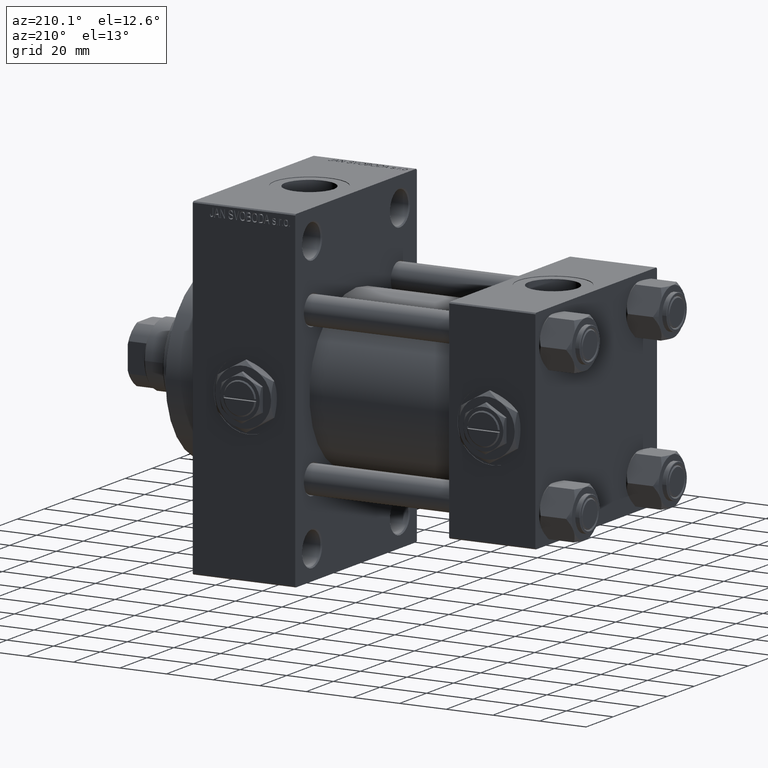
[diagram: clean part render]
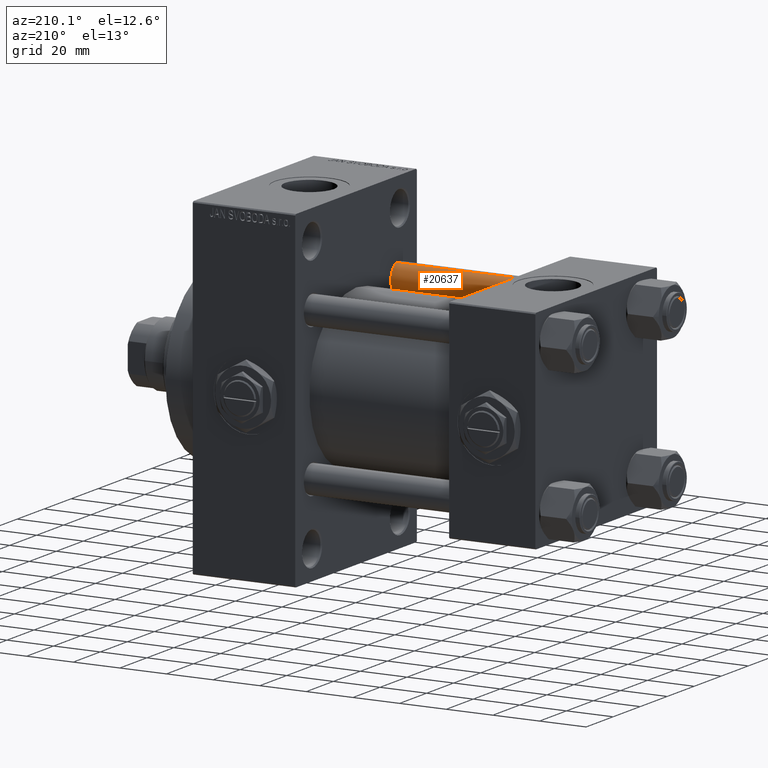
[diagram: same view with one face highlighted and labeled with its STEP entity id]
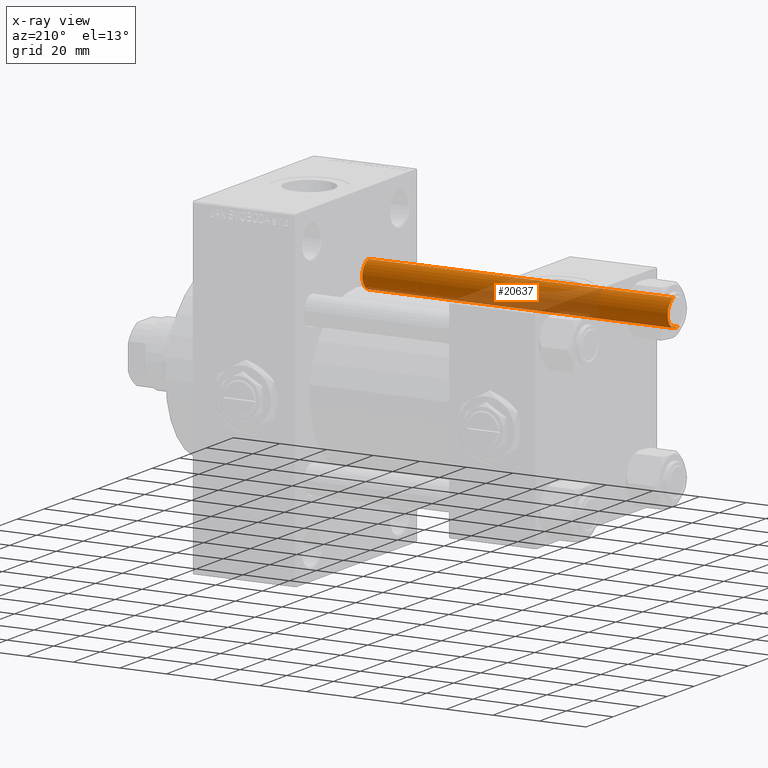
[diagram: x-ray of the same camera — body ghosted, the highlighted face saturated]
A machine part, auxiliary view. The second image highlights one B-rep face of the part: STEP entity #20637.
The next image is the same camera in x-ray: the body ghosted, the highlighted face saturated — about 36% of this face is hidden behind the body in this view.
In plain terms, the highlighted cylindrical surface (edge-blend (fillet) strip) has radius 6 mm, axis along (1, 0, 0).
Its self-contained STEP definition (entity closure, byte-faithful):
#300 = VERTEX_POINT ( 'NONE', #11860 ) ;
#2718 = VERTEX_POINT ( 'NONE', #45477 ) ;
#3138 = ORIENTED_EDGE ( 'NONE', *, *, #7655, .T. ) ;
#4096 = ORIENTED_EDGE ( 'NONE', *, *, #34142, .T. ) ;
#7655 = EDGE_CURVE ( 'NONE', #2718, #36695, #45165, .T. ) ;
#8172 = CARTESIAN_POINT ( 'NONE',  ( -6.000000000000000888, 0.000000000000000000, 132.0000000000000000 ) ) ;
#11426 = CARTESIAN_POINT ( 'NONE',  ( 6.000000000000000888, 7.347880794884120722E-16, 0.5000000000000281997 ) ) ;
#11860 = CARTESIAN_POINT ( 'NONE',  ( -6.000000000000000888, 0.000000000000000000, 0.5000000000000281997 ) ) ;
#13732 = LINE ( 'NONE', #25434, #32668 ) ;
#13801 = CARTESIAN_POINT ( 'NONE',  ( 0.000000000000000000, 0.000000000000000000, 131.4999999999999716 ) ) ;
#14312 = EDGE_CURVE ( 'NONE', #2718, #15700, #13732, .T. ) ;
#15084 = CARTESIAN_POINT ( 'NONE',  ( -6.000000000000000888, 0.000000000000000000, 131.4999999999999716 ) ) ;
#15294 = VECTOR ( 'NONE', #46059, 1000.000000000000000 ) ;
#15632 = LINE ( 'NONE', #8172, #15294 ) ;
#15700 = VERTEX_POINT ( 'NONE', #11426 ) ;
#16122 = DIRECTION ( 'NONE',  ( 0.000000000000000000, 0.000000000000000000, -1.000000000000000000 ) ) ;
#16428 = EDGE_LOOP ( 'NONE', ( #44850, #3138, #4096, #17149 ) ) ;
#17149 = ORIENTED_EDGE ( 'NONE', *, *, #23592, .T. ) ;
#18181 = FACE_OUTER_BOUND ( 'NONE', #16428, .T. ) ;
#20637 = ADVANCED_FACE ( 'NONE', ( #18181 ), #44365, .T. ) ;
#23592 = EDGE_CURVE ( 'NONE', #300, #15700, #24565, .T. ) ;
#23642 = AXIS2_PLACEMENT_3D ( 'NONE', #13801, #16122, #27583 ) ;
#24565 = CIRCLE ( 'NONE', #40504, 6.000000000000000888 ) ;
#25434 = CARTESIAN_POINT ( 'NONE',  ( 6.000000000000000888, 7.347880794884120722E-16, 132.0000000000000000 ) ) ;
#27583 = DIRECTION ( 'NONE',  ( 1.000000000000000000, 0.000000000000000000, 0.000000000000000000 ) ) ;
#28936 = DIRECTION ( 'NONE',  ( -0.000000000000000000, -0.000000000000000000, -1.000000000000000000 ) ) ;
#32668 = VECTOR ( 'NONE', #28936, 1000.000000000000000 ) ;
#33389 = CARTESIAN_POINT ( 'NONE',  ( 0.000000000000000000, 0.000000000000000000, 132.0000000000000000 ) ) ;
#34142 = EDGE_CURVE ( 'NONE', #36695, #300, #15632, .T. ) ;
#34464 = CARTESIAN_POINT ( 'NONE',  ( 0.000000000000000000, 0.000000000000000000, 0.5000000000000281997 ) ) ;
#36695 = VERTEX_POINT ( 'NONE', #15084 ) ;
#39132 = AXIS2_PLACEMENT_3D ( 'NONE', #33389, #48599, #41120 ) ;
#40504 = AXIS2_PLACEMENT_3D ( 'NONE', #34464, #48699, #41207 ) ;
#41120 = DIRECTION ( 'NONE',  ( -1.000000000000000000, 0.000000000000000000, 0.000000000000000000 ) ) ;
#41207 = DIRECTION ( 'NONE',  ( 1.000000000000000000, 0.000000000000000000, 0.000000000000000000 ) ) ;
#44365 = CYLINDRICAL_SURFACE ( 'NONE', #39132, 6.000000000000000888 ) ;
#44850 = ORIENTED_EDGE ( 'NONE', *, *, #14312, .F. ) ;
#45165 = CIRCLE ( 'NONE', #23642, 6.000000000000000888 ) ;
#45477 = CARTESIAN_POINT ( 'NONE',  ( 6.000000000000000888, 7.347880794884120722E-16, 131.4999999999999716 ) ) ;
#46059 = DIRECTION ( 'NONE',  ( -0.000000000000000000, -0.000000000000000000, -1.000000000000000000 ) ) ;
#48599 = DIRECTION ( 'NONE',  ( -0.000000000000000000, -0.000000000000000000, -1.000000000000000000 ) ) ;
#48699 = DIRECTION ( 'NONE',  ( -0.000000000000000000, -0.000000000000000000, 1.000000000000000000 ) ) ;